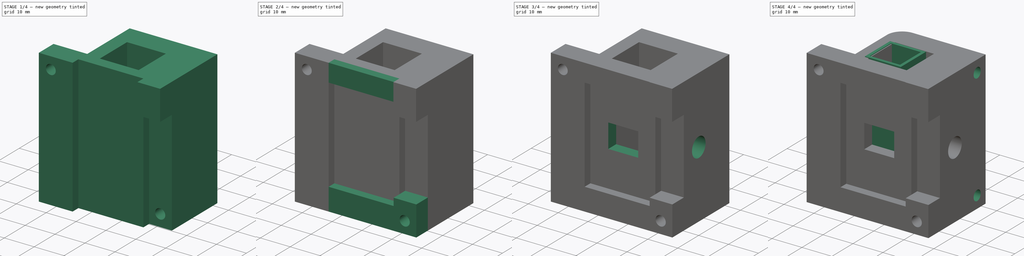
[diagram: build sequence overview — one tinted view per stage of 4, left to right]
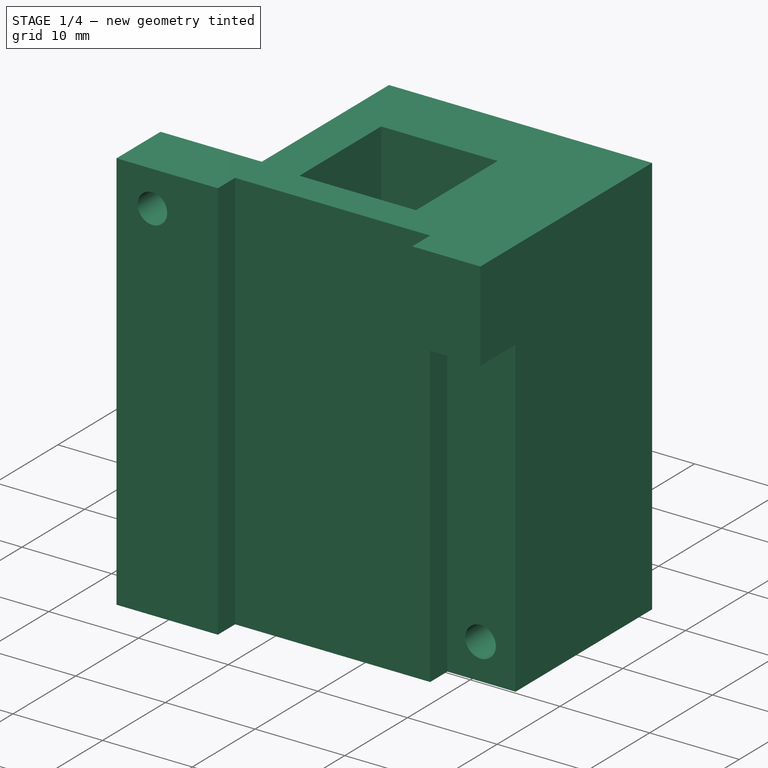
[diagram: stage 1 of 4 — iso view after this stage's code; geometry added in this stage tinted green]
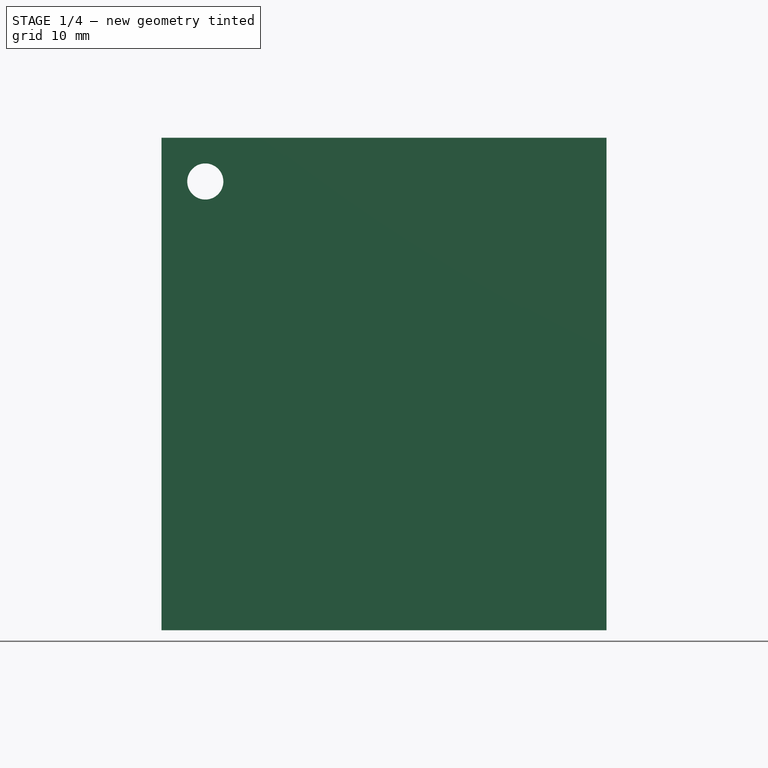
[diagram: stage 1 of 4 — front view after this stage's code; geometry added in this stage tinted green]
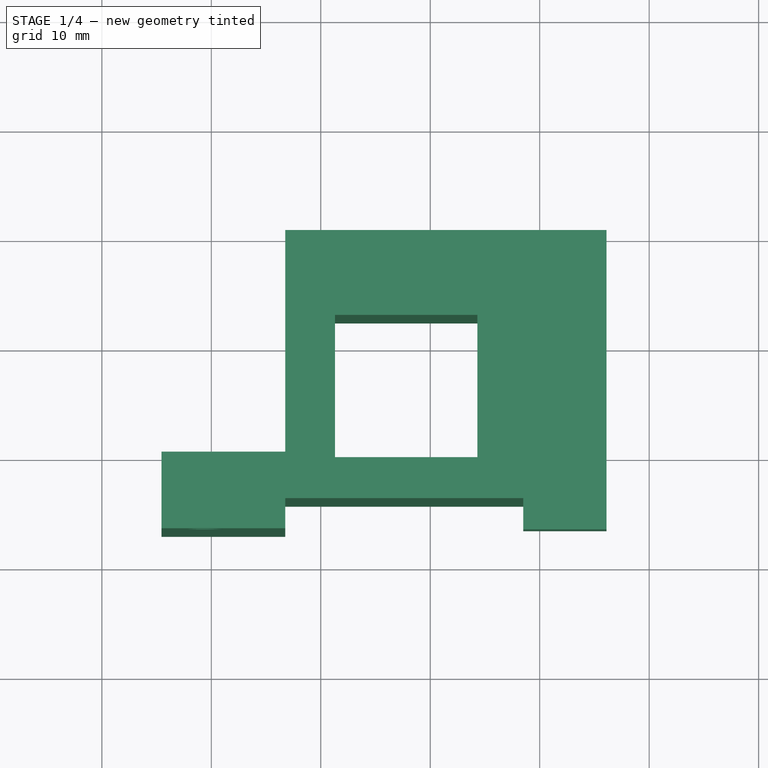
[diagram: stage 1 of 4 — top view after this stage's code; geometry added in this stage tinted green]
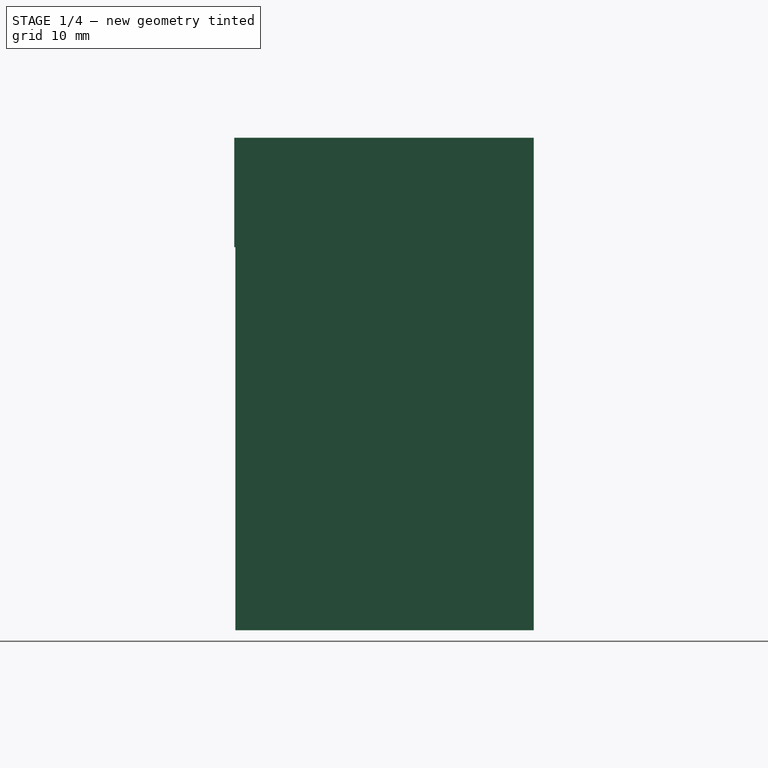
[diagram: stage 1 of 4 — right view after this stage's code; geometry added in this stage tinted green]
FCSTD DOCUMENT  (FreeCAD 0.21R33675 (Git))
Label: open_jip
License: All rights reserved
LicenseURL: http://en.wikipedia.org/wiki/All_rights_reserved
objects: Part::Feature×81, App::Part×56, Sketcher::SketchObject×12, PartDesign::ShapeBinder×10, PartDesign::Pad×7, PartDesign::Pocket×5, PartDesign::Body×2, PartDesign::Fillet×2
note: 133 computed .brp shape members not serialized (recipe doc carries the construction recipe); baked Part::Feature solids carry a one-line shape summary decoded from their .brp

FEATURE [PartDesign::Body] Body
  Group = -> [Sketch,Pad,ShapeBinder,Sketch001,Pad001]
  Origin = -> Origin001
  Tip = -> Pad001
FEATURE [App::Part] Part  label="Cuvette"
  Group = -> [Body]
  Origin = -> Origin
  Placement = pos=(1.8,0,0) rot=(0,0,1;0rad)
FEATURE [Part::Feature] Part__Feature051  label="SOLID012"
  shape: bbox 2 x 1.25 x 1.25 mm, 28 faces (baked)
FEATURE [App::Part] C_0805_2012Metric004
  Group = -> [Part__Feature051]
  Origin = -> Origin036
  Placement = pos=(13.779,16.905,1.65) rot=(0,0,1;0rad)
FEATURE [Part::Feature] Part__Feature052  label="SOLID013"
  shape: bbox 2 x 1.25 x 1.25 mm, 28 faces (baked)
FEATURE [App::Part] C_0805_2012Metric005
  Group = -> [Part__Feature052]
  Origin = -> Origin037
  Placement = pos=(18.979,21.505,1.65) rot=(0,0,-1;1.5708rad)
FEATURE [Part::Feature] Part__Feature053  label="SOLID014"
  shape: bbox 2 x 1.25 x 1.25 mm, 28 faces (baked)
FEATURE [App::Part] C_0805_2012Metric006
  Group = -> [Part__Feature053]
  Origin = -> Origin038
  Placement = pos=(20.179,10.305,1.65) rot=(0,0,-1;1.5708rad)
FEATURE [Part::Feature] Part__Feature054  label="SOLID015"
  shape: bbox 3.4 x 6.35 x 6.3 mm, 214 faces (baked)
FEATURE [App::Part] PinHeader_2x05_P1_27mm_Vertical  label="PinHeader_2x05_P1.27mm_Vertical"
  Group = -> [Part__Feature054]
  Origin = -> Origin039
  Placement = pos=(24.13,19.985,1.65) rot=(0,0,1;0rad)
FEATURE [Part::Feature] Part__Feature055  label="SOLID016"
  shape: bbox 2 x 1.25 x 1.25 mm, 28 faces (baked)
FEATURE [App::Part] C_0805_2012Metric007
  Group = -> [Part__Feature055]
  Origin = -> Origin040
  Placement = pos=(16.979,16.655,1.65) rot=(0,0,1;1.5708rad)
FEATURE [Part::Feature] Part__Feature056  label="SOLID017"
  shape: bbox 2 x 1.25 x 1.25 mm, 28 faces (baked)
FEATURE [App::Part] C_0805_2012Metric008
  Group = -> [Part__Feature056]
  Origin = -> Origin041
  Placement = pos=(19.179,16.655,1.65) rot=(0,0,1;1.5708rad)
FEATURE [Part::Feature] Part__Feature057  label="SOLID018"
  shape: bbox 2 x 1.2 x 0.45 mm, 26 faces (baked)
FEATURE [App::Part] R_0805_2012Metric003
  Group = -> [Part__Feature057]
  Origin = -> Origin042
  Placement = pos=(10.0665,16.905,1.65) rot=(0,0,1;3.14159rad)
FEATURE [Part::Feature] Part__Feature058  label="SOLID019"
  shape: bbox 2.54 x 10.16 x 10.1 mm, 134 faces (baked)
FEATURE [App::Part] PinSocket_1x04_P2_54mm_Vertical  label="PinSocket_1x04_P2.54mm_Vertical"
  Group = -> [Part__Feature058]
  Origin = -> Origin043
  Placement = pos=(10.795,2.54,1.65) rot=(0,0,1;1.5708rad)
FEATURE [Part::Feature] Part__Feature059  label="SOLID020"
  shape: bbox 2 x 1.25 x 1.25 mm, 28 faces (baked)
FEATURE [App::Part] C_0805_2012Metric009
  Group = -> [Part__Feature059]
  Origin = -> Origin044
  Placement = pos=(8.979,11.055,1.65) rot=(0,0,-1;1.5708rad)
FEATURE [Part::Feature] Part__Feature060  label="SOLID021"
  shape: bbox 2 x 1.25 x 1.25 mm, 28 faces (baked)
FEATURE [App::Part] C_0805_2012Metric010
  Group = -> [Part__Feature060]
  Origin = -> Origin045
  Placement = pos=(13.779,14.705,1.65) rot=(0,0,1;0rad)
FEATURE [Part::Feature] Part__Feature061  label="SOLID022"
  shape: bbox 2 x 1.25 x 1.25 mm, 28 faces (baked)
FEATURE [App::Part] C_0805_2012Metric011
  Group = -> [Part__Feature061]
  Origin = -> Origin046
  Placement = pos=(9.579,27.0425,1.65) rot=(0,0,1;1.5708rad)
FEATURE [Part::Feature] Part__Feature062  label="SOLID023"
  shape: bbox 2 x 1.2 x 0.45 mm, 26 faces (baked)
FEATURE [App::Part] R_0805_2012Metric004
  Group = -> [Part__Feature062]
  Origin = -> Origin047
  Placement = pos=(7.179,32.004,1.65) rot=(0,0,1;3.14159rad)
FEATURE [Part::Feature] Part__Feature063  label="COMPOUND045"
  shape: bbox 3.19 x 0.05 x 1.49 mm, 18 faces (baked)
FEATURE [Part::Feature] Part__Feature064  label="COMPOUND046"
  shape: bbox 0.6557 x 0.3 x 1.411 mm, 13 faces (baked)
FEATURE [Part::Feature] Part__Feature065  label="COMPOUND047"
  shape: bbox 0.6557 x 0.3 x 1.411 mm, 12 faces (baked)
FEATURE [Part::Feature] Part__Feature066  label="COMPOUND048"
  shape: bbox 3.025 x 0.12 x 1.325 mm, 18 faces (baked)
FEATURE [Part::Feature] Part__Feature067  label="COMPOUND049"
  shape: bbox 3.2 x 0.78 x 1.5 mm, 49 faces (baked)
FEATURE [App::Part] COMPOUND007  label="COMPOUND050"
  Group = -> [Part__Feature063,Part__Feature064,Part__Feature065,Part__Feature066,Part__Feature067]
  Origin = -> Origin048
FEATURE [App::Part] ECS__327_12_5_34R_C_TR  label="ECS-.327-12.5-34R-C-TR"
  Group = -> [COMPOUND007]
  Origin = -> Origin049
  Placement = pos=(17.979,13.505,1.65) rot=(0,0.707107,0.707107;3.14159rad)
FEATURE [Part::Feature] Part__Feature068  label="SOLID024"
  shape: bbox 2 x 1.25 x 1.25 mm, 28 faces (baked)
FEATURE [App::Part] C_0805_2012Metric012
  Group = -> [Part__Feature068]
  Origin = -> Origin050
  Placement = pos=(9.729,6.477,1.65) rot=(0,0,1;3.14159rad)
FEATURE [Part::Feature] Part__Feature069  label="SOLID025"
  shape: bbox 2 x 1.2 x 0.45 mm, 26 faces (baked)
FEATURE [App::Part] R_0805_2012Metric005
  Group = -> [Part__Feature069]
  Origin = -> Origin051
  Placement = pos=(12.319,27.813,1.65) rot=(0,0,1;0rad)
FEATURE [Part::Feature] Part__Feature070  label="SOLID026"
  shape: bbox 2 x 1.2 x 0.45 mm, 26 faces (baked)
FEATURE [App::Part] R_0805_2012Metric006
  Group = -> [Part__Feature070]
  Origin = -> Origin052
  Placement = pos=(16.779,21.505,1.65) rot=(0,0,-1;1.5708rad)
FEATURE [Part::Feature] Part__Feature071  label="SOLID027"
  shape: bbox 2 x 1.2 x 0.45 mm, 26 faces (baked)
FEATURE [App::Part] R_0805_2012Metric007
  Group = -> [Part__Feature071]
  Origin = -> Origin053
  Placement = pos=(21.336,14.0175,1.65) rot=(0,0,-1;1.5708rad)
FEATURE [Part::Feature] Part__Feature072  label="SOLID028"
  shape: bbox 5 x 5 x 0.77 mm, 206 faces (baked)
FEATURE [App::Part] QFN_32_1EP_5x5mm_P0_5mm_EP3_45x3_45mm  label="QFN-32-1EP_5x5mm_P0.5mm_EP3.45x3.45mm"
  Group = -> [Part__Feature072]
  Origin = -> Origin054
  Placement = pos=(14.829,8.655,1.65) rot=(0,0,-1;1.5708rad)
FEATURE [Part::Feature] Part__Feature073  label="COMPOUND051"
  shape: bbox 5.139 x 7.085 x 6.323 mm, 35 faces (baked)
FEATURE [Part::Feature] Part__Feature074  label="COMPOUND052"
  shape: bbox 10 x 5.225 x 6 mm, 179 faces (baked)
FEATURE [App::Part] COMPOUND008  label="COMPOUND053"
  Group = -> [Part__Feature073,Part__Feature074]
  Origin = -> Origin055
FEATURE [App::Part] TL3301PF160QG
  Group = -> [COMPOUND008]
  Origin = -> Origin056
  Placement = pos=(4.579,6.905,1.65) rot=(0.57735,-0.57735,-0.57735;2.0944rad)
FEATURE [Part::Feature] Part__Feature075  label="SOLID029"
  shape: bbox 2 x 1.2 x 0.45 mm, 26 faces (baked)
FEATURE [App::Part] R_0805_2012Metric008
  Group = -> [Part__Feature075]
  Origin = -> Origin057
  Placement = pos=(10.0915,14.705,1.65) rot=(0,0,1;0rad)
FEATURE [Part::Feature] Part__Feature076  label="SOLID030"
  shape: bbox 2 x 1.25 x 1.25 mm, 28 faces (baked)
FEATURE [App::Part] C_0805_2012Metric013
  Group = -> [Part__Feature076]
  Origin = -> Origin058
  Placement = pos=(22.379,10.305,1.65) rot=(0,0,-1;1.5708rad)
FEATURE [Part::Feature] Part__Feature077  label="SOLID031"
  shape: bbox 2 x 1.2 x 0.45 mm, 26 faces (baked)
FEATURE [App::Part] R_0805_2012Metric009
  Group = -> [Part__Feature077]
  Origin = -> Origin059
  Placement = pos=(24.257,23.368,1.65) rot=(0,0,-1;1.5708rad)
FEATURE [Part::Feature] Part__Feature078  label="SOLID032"
  shape: bbox 2.8 x 2.9 x 1.55 mm, 124 faces (baked)
FEATURE [App::Part] SOT_23_6  label="SOT-23-6"
  Group = -> [Part__Feature078]
  Origin = -> Origin060
  Placement = pos=(10.379,22.705,1.65) rot=(0,0,1;1.5708rad)
FEATURE [Part::Feature] Part__Feature079  label="SOLID033"
  shape: bbox 5.4 x 5.8 x 14.1 mm, 16 faces (baked)
FEATURE [App::Part] LED_D5_0mm_IRGrey  label="LED_D5.0mm_IRGrey"
  Group = -> [Part__Feature079]
  Origin = -> Origin061
  Placement = pos=(14.478,21.331,2.9) rot=(0.707107,0.707107,0;3.14159rad)
FEATURE [Part::Feature] Part__Feature080  label="detect PCB"
  shape: bbox 29.05 x 45.05 x 1.6 mm, 37 faces (baked)
FEATURE [App::Part] detect_1  label="detect 1"
  Group = -> [C_0805_2012Metric004,C_0805_2012Metric005,C_0805_2012Metric006,PinHeader_2x05_P1_27mm_Vertical,C_0805_2012Metric007,C_0805_2012Metric008,R_0805_2012Metric003,PinSocket_1x04_P2_54mm_Vertical,C_0805_2012Metric009,C_0805_2012Metric010,C_0805_2012Metric011,R_0805_2012Metric004,ECS__327_12_5_34R_C_TR,C_0805_2012Metric012,R_0805_2012Metric005,R_0805_2012Metric006,R_0805_2012Metric007,+8 more]
  Origin = -> Origin062
  Placement = pos=(26.3,-8.8,2e-15) rot=(0.57735,0.57735,0.57735;2.0944rad)
FEATURE [Part::Feature] Part__Feature  label="COMPOUND"
  shape: bbox 0.49 x 12.05 x 4.1 mm, 20 faces (baked)
FEATURE [Part::Feature] Part__Feature081  label="COMPOUND054"
  shape: bbox 6.825 x 10.56 x 9 mm, 25 faces (baked)
FEATURE [Part::Feature] Part__Feature082  label="COMPOUND055"
  shape: bbox 9.1 x 2.4 x 2.4 mm, 7 faces (baked)
FEATURE [Part::Feature] Part__Feature083  label="COMPOUND056"
  shape: bbox 2.5 x 8 x 0.65 mm, 12 faces (baked)
FEATURE [Part::Feature] Part__Feature084  label="COMPOUND057"
  shape: bbox 0.25 x 3.5 x 2.5 mm, 8 faces (baked)
FEATURE [Part::Feature] Part__Feature085  label="COMPOUND058"
  shape: bbox 12.15 x 11 x 9 mm, 31 faces (baked)
FEATURE [Part::Feature] Part__Feature086  label="COMPOUND059"
  shape: bbox 8.6 x 0.45 x 3.3 mm, 5 faces (baked)
FEATURE [App::Part] COMPOUND  label="COMPOUND060"
  Group = -> [Part__Feature,Part__Feature081,Part__Feature082,Part__Feature083,Part__Feature084,Part__Feature085,Part__Feature086]
  Origin = -> Origin063
FEATURE [App::Part] PJ_002A  label="PJ-002A"
  Group = -> [COMPOUND]
  Origin = -> Origin064
  Placement = pos=(11.938,7.239,1.65) rot=(0,0.707107,0.707107;3.14159rad)
FEATURE [Part::Feature] Part__Feature087  label="COMPOUND061"
  shape: bbox 1.882 x 4.652 x 0.051 mm, 6 faces (baked)
FEATURE [Part::Feature] Part__Feature088  label="COMPOUND062"
  shape: bbox 9.412 x 5.032 x 3.812 mm, 16 faces (baked)
FEATURE [Part::Feature] Part__Feature089  label="COMPOUND063"
  shape: bbox 4.242 x 3.81 x 1.905 mm, 10 faces (baked)
FEATURE [Part::Feature] Part__Feature090  label="COMPOUND064"
  shape: bbox 4.242 x 3.81 x 1.905 mm, 10 faces (baked)
FEATURE [App::Part] COMPOUND009
  Group = -> [Part__Feature087,Part__Feature088,Part__Feature089,Part__Feature090]
  Origin = -> Origin065
FEATURE [App::Part] _154010_DRL  label="0154010.DRL"
  Group = -> [COMPOUND009]
  Origin = -> Origin066
  Placement = pos=(26.543,9.2657,1.65) rot=(0,0,-1;1.5708rad)
FEATURE [Part::Feature] Part__Feature091  label="SOLID"
  shape: bbox 7.3 x 4.3 x 1.5 mm, 40 faces (baked)
FEATURE [App::Part] CP_EIA_7343_15_Kemet_W  label="CP_EIA-7343-15_Kemet-W"
  Group = -> [Part__Feature091]
  Origin = -> Origin067
  Placement = pos=(26.289,17.653,1.65) rot=(0,0,1;0rad)
FEATURE [Part::Feature] Part__Feature092  label="SOLID034"
  shape: bbox 7.2 x 12.7 x 8.41 mm, 103 faces (baked)
FEATURE [App::Part] TBP02R2_381_02BE  label="TBP02R2-381-02BE"
  Group = -> [Part__Feature092]
  Origin = -> Origin068
  Placement = pos=(12.352,34.632,19.65) rot=(0,-0.707107,0.707107;3.14159rad)
FEATURE [Part::Feature] Part__Feature093  label="SOLID035"
  shape: bbox 2 x 1.2 x 0.45 mm, 26 faces (baked)
FEATURE [App::Part] R_0805_2012Metric
  Group = -> [Part__Feature093]
  Origin = -> Origin069
  Placement = pos=(37.592,12.065,1.65) rot=(0,0,-1;1.5708rad)
FEATURE [Part::Feature] Part__Feature094  label="SOLID036"
  shape: bbox 2 x 1.2 x 0.45 mm, 26 faces (baked)
FEATURE [App::Part] R_0805_2012Metric010
  Group = -> [Part__Feature094]
  Origin = -> Origin070
  Placement = pos=(15.24,12.192,1.65) rot=(0,0,1;0rad)
FEATURE [Part::Feature] Part__Feature095  label="SOLID037"
  shape: bbox 2 x 1.25 x 1.25 mm, 28 faces (baked)
FEATURE [App::Part] C_0805_2012Metric
  Group = -> [Part__Feature095]
  Origin = -> Origin071
  Placement = pos=(29.972,38.862,1.65) rot=(0,0,1;1.5708rad)
FEATURE [Part::Feature] Part__Feature096  label="SOLID038"
  shape: bbox 2 x 1.2 x 0.45 mm, 26 faces (baked)
FEATURE [App::Part] R_0805_2012Metric011
  Group = -> [Part__Feature096]
  Origin = -> Origin072
  Placement = pos=(35.433,12.0415,1.65) rot=(0,0,-1;1.5708rad)
FEATURE [Part::Feature] Part__Feature097  label="COMPOUND065"
  shape: bbox 1.75 x 0.76 x 0.7 mm, 14 faces (baked)
FEATURE [Part::Feature] Part__Feature098  label="COMPOUND066"
  shape: bbox 1.75 x 0.76 x 0.7 mm, 14 faces (baked)
FEATURE [Part::Feature] Part__Feature099  label="COMPOUND067"
  shape: bbox 3.5 x 1.5 x 6.5 mm, 14 faces (baked)
FEATURE [Part::Feature] Part__Feature100  label="COMPOUND068"
  shape: bbox 1.75 x 0.76 x 0.7 mm, 14 faces (baked)
FEATURE [Part::Feature] Part__Feature101  label="COMPOUND069"
  shape: bbox 1.75 x 0.76 x 3 mm, 14 faces (baked)
FEATURE [App::Part] COMPOUND010
  Group = -> [Part__Feature097,Part__Feature098,Part__Feature099,Part__Feature100,Part__Feature101]
  Origin = -> Origin073
FEATURE [App::Part] DMP6023LE_13  label="DMP6023LE-13"
  Group = -> [COMPOUND010]
  Origin = -> Origin074
  Placement = pos=(18.923,7.239,1.65) rot=(1,0,0;1.5708rad)
FEATURE [Part::Feature] Part__Feature102  label="SOLID039"
  shape: bbox 2 x 1.25 x 1.25 mm, 28 faces (baked)
FEATURE [App::Part] C_0805_2012Metric014
  Group = -> [Part__Feature102]
  Origin = -> Origin075
  Placement = pos=(33.462,33.782,1.65) rot=(0,0,1;3.14159rad)
FEATURE [Part::Feature] Part__Feature103  label="COMPOUND070"
  shape: bbox 0.08509 x 0.08509 x 0.002 mm, 3 faces (baked)
FEATURE [Part::Feature] Part__Feature104  label="COMPOUND071"
  shape: bbox 1.702 x 2.998 x 0.991 mm, 6 faces (baked)
FEATURE [Part::Feature] Part__Feature105  label="COMPOUND072"
  shape: bbox 0.5476 x 0.4596 x 0.3196 mm, 14 faces (baked)
FEATURE [Part::Feature] Part__Feature106  label="COMPOUND073"
  shape: bbox 0.5476 x 0.4596 x 0.3196 mm, 14 faces (baked)
FEATURE [Part::Feature] Part__Feature107  label="COMPOUND074"
  shape: bbox 0.5476 x 0.4596 x 0.3196 mm, 14 faces (baked)
FEATURE [Part::Feature] Part__Feature108  label="COMPOUND075"
  shape: bbox 0.5476 x 0.4596 x 0.3196 mm, 14 faces (baked)
FEATURE [Part::Feature] Part__Feature109  label="COMPOUND076"
  shape: bbox 0.5476 x 0.4596 x 0.3196 mm, 14 faces (baked)
FEATURE [Part::Feature] Part__Feature110  label="COMPOUND077"
  shape: bbox 0.5476 x 0.4596 x 0.3196 mm, 14 faces (baked)
FEATURE [App::Part] COMPOUND011
  Group = -> [Part__Feature103,Part__Feature104,Part__Feature105,Part__Feature106,Part__Feature107,Part__Feature108,Part__Feature109,Part__Feature110]
  Origin = -> Origin076
FEATURE [App::Part] AP63205WU_7  label="AP63205WU-7"
  Group = -> [COMPOUND011]
  Origin = -> Origin077
  Placement = pos=(29.1782,34.925,1.65) rot=(0,0,1;0rad)
FEATURE [Part::Feature] Part__Feature111  label="COMPOUND078"
  shape: bbox 0.3048 x 0.3048 x 0.002 mm, 3 faces (baked)
FEATURE [Part::Feature] Part__Feature112  label="COMPOUND079"
  shape: bbox 6.096 x 5.512 x 4.795 mm, 6 faces (baked)
FEATURE [Part::Feature] Part__Feature113  label="COMPOUND080"
  shape: bbox 2.261 x 5.512 x 0.006 mm, 6 faces (baked)
FEATURE [Part::Feature] Part__Feature114  label="COMPOUND081"
  shape: bbox 2.261 x 5.512 x 0.006 mm, 6 faces (baked)
FEATURE [App::Part] COMPOUND012
  Group = -> [Part__Feature111,Part__Feature112,Part__Feature113,Part__Feature114]
  Origin = -> Origin078
FEATURE [App::Part] SDE0604A_3R9M  label="SDE0604A-3R9M"
  Group = -> [COMPOUND012]
  Origin = -> Origin079
  Placement = pos=(35.56,38.481,1.65) rot=(0,0,1;0rad)
FEATURE [Part::Feature] Part__Feature115  label="COMPOUND082"
  shape: bbox 7.696 x 1.27 x 10.36 mm, 16 faces (baked)
FEATURE [Part::Feature] Part__Feature116  label="COMPOUND083"
  shape: bbox 5.105 x 3.289 x 1.27 mm, 18 faces (baked)
FEATURE [Part::Feature] Part__Feature117  label="COMPOUND084"
  shape: bbox 5.105 x 3.289 x 1.27 mm, 18 faces (baked)
FEATURE [Part::Feature] Part__Feature118  label="COMPOUND085"
  shape: bbox 5.105 x 3.289 x 1.27 mm, 18 faces (baked)
FEATURE [Part::Feature] Part__Feature119  label="COMPOUND086"
  shape: bbox 8.776 x 4.597 x 10.36 mm, 20 faces (baked)
FEATURE [Part::Feature] Part__Feature120  label="COMPOUND087"
  shape: bbox 0.762 x 0.508 x 0.762 mm, 4 faces (baked)
FEATURE [App::Part] COMPOUND013
  Group = -> [Part__Feature115,Part__Feature116,Part__Feature117,Part__Feature118,Part__Feature119,Part__Feature120]
  Origin = -> Origin080
FEATURE [App::Part] MIC29150_12WU  label="MIC29150-12WU"
  Group = -> [COMPOUND013]
  Origin = -> Origin081
  Placement = pos=(18.428,24.384,1.65) rot=(0,0.707107,0.707107;3.14159rad)
FEATURE [Part::Feature] Part__Feature121  label="SOLID040"
  shape: bbox 7.3 x 4.3 x 1.5 mm, 40 faces (baked)
FEATURE [App::Part] CP_EIA_7343_15_Kemet_W001  label="CP_EIA-7343-15_Kemet-W001"
  Group = -> [Part__Feature121]
  Origin = -> Origin082
  Placement = pos=(21.844,32.766,1.65) rot=(0,0,1;3.14159rad)
FEATURE [Part::Feature] Part__Feature122  label="SOLID041"
  shape: bbox 2 x 1.25 x 1.25 mm, 28 faces (baked)
FEATURE [App::Part] C_0805_2012Metric015
  Group = -> [Part__Feature122]
  Origin = -> Origin083
  Placement = pos=(28.829,31.75,1.65) rot=(0,0,1;0rad)
FEATURE [Part::Feature] Part__Feature123  label="COMPOUND088"
  shape: bbox 0.5222 x 0.7239 x 0.6096 mm, 14 faces (baked)
FEATURE [Part::Feature] Part__Feature124  label="COMPOUND089"
  shape: bbox 2.692 x 1.245 x 1.6 mm, 15 faces (baked)
FEATURE [Part::Feature] Part__Feature125  label="COMPOUND090"
  shape: bbox 0.6096 x 0.0508 x 1.267 mm, 6 faces (baked)
FEATURE [Part::Feature] Part__Feature126  label="COMPOUND091"
  shape: bbox 0.5222 x 0.7239 x 0.6096 mm, 14 faces (baked)
FEATURE [App::Part] COMPOUND014
  Group = -> [Part__Feature123,Part__Feature124,Part__Feature125,Part__Feature126]
  Origin = -> Origin084
FEATURE [App::Part] MMSZ4700T1G
  Group = -> [COMPOUND014]
  Origin = -> Origin085
  Placement = pos=(19.953,12.065,1.65) rot=(0,0.707107,0.707107;3.14159rad)
FEATURE [Part::Feature] Part__Feature127  label="SOLID042"
  shape: bbox 2 x 1.25 x 1.25 mm, 28 faces (baked)
FEATURE [App::Part] C_0805_2012Metric016
  Group = -> [Part__Feature127]
  Origin = -> Origin086
  Placement = pos=(33.462,31.623,1.65) rot=(0,0,1;3.14159rad)
FEATURE [Part::Feature] Part__Feature128  label="SOLID043"
  shape: bbox 12.9 x 15.24 x 8.08 mm, 292 faces (baked)
FEATURE [App::Part] PinHeader_2x06_P2_54mm_Horizontal  label="PinHeader_2x06_P2.54mm_Horizontal"
  Group = -> [Part__Feature128]
  Origin = -> Origin087
  Placement = pos=(34.163,15.875,-0.05) rot=(1,0,0;3.14159rad)
FEATURE [Part::Feature] Part__Feature129  label="SOLID044"
  shape: bbox 28.98 x 20 x 2.75 mm, 92 faces (baked)
FEATURE [App::Part] _0W_LED  label="10W LED"
  Group = -> [Part__Feature129]
  Origin = -> Origin088
  Placement = pos=(22.368,23.495,-0.05) rot=(0.707107,0.707107,0;3.14159rad)
FEATURE [Part::Feature] Part__Feature130  label="excite PCB"
  shape: bbox 40.89 x 45.09 x 1.6 mm, 97 faces (baked)
FEATURE [App::Part] excite_1  label="excite 1"
  Group = -> [PJ_002A,_154010_DRL,CP_EIA_7343_15_Kemet_W,TBP02R2_381_02BE,R_0805_2012Metric,R_0805_2012Metric010,C_0805_2012Metric,R_0805_2012Metric011,DMP6023LE_13,C_0805_2012Metric014,AP63205WU_7,SDE0604A_3R9M,MIC29150_12WU,CP_EIA_7343_15_Kemet_W001,C_0805_2012Metric015,MMSZ4700T1G,C_0805_2012Metric016,PinHeader_2x06_P2_54mm_Horizontal,_0W_LED,Part__Feature130]
  Origin = -> Origin089
  Placement = pos=(-14.6,-7.2,1.1e-15) rot=(1,0,0;1.5708rad)
FEATURE [Sketcher::SketchObject] Sketch002
  FullyConstrained = true
  MapMode = 5
  Support = -> [XY_Plane091]
  sketch-geometry (14):
    g0: LineSegment StartX=-14.55 StartY=-7 StartZ=0 EndX=-3.25 EndY=-7 EndZ=0
    g1: LineSegment StartX=-3.25 StartY=-7 StartZ=0 EndX=-3.25 EndY=-4.25 EndZ=0
    g2: LineSegment StartX=-3.25 StartY=-4.25 StartZ=0 EndX=18.5 EndY=-4.25 EndZ=0
    g3: LineSegment StartX=18.5 StartY=-4.25 StartZ=0 EndX=18.5 EndY=-1.5 EndZ=0
    g4: LineSegment StartX=18.5 StartY=-1.5 StartZ=0 EndX=26.1 EndY=-1.5 EndZ=0
    g5: LineSegment StartX=26.1 StartY=-1.5 StartZ=0 EndX=26.1 EndY=20.25 EndZ=0
    g6: LineSegment StartX=1.3 StartY=12.5 StartZ=0 EndX=14.3 EndY=12.5 EndZ=0
    g7: LineSegment StartX=14.3 StartY=12.5 StartZ=0 EndX=14.3 EndY=-0.5 EndZ=0
    g8: LineSegment StartX=14.3 StartY=-0.5 StartZ=0 EndX=1.3 EndY=-0.5 EndZ=0
    g9: LineSegment StartX=1.3 StartY=-0.5 StartZ=0 EndX=1.3 EndY=12.5 EndZ=0
    g10: LineSegment StartX=-14.55 StartY=-7 StartZ=0 EndX=-14.55 EndY=0 EndZ=0
    g11: LineSegment StartX=-14.55 StartY=0 StartZ=0 EndX=-3.25 EndY=0 EndZ=0
    g12: LineSegment StartX=-3.25 StartY=0 StartZ=0 EndX=-3.25 EndY=20.25 EndZ=0
    g13: LineSegment StartX=-3.25 StartY=20.25 StartZ=0 EndX=26.1 EndY=20.25 EndZ=0
  constraints (42):
    c: Horizontal(g0)
    c: Coincident(g0,g1)
    c: Vertical(g1)
    c: Coincident(g1,g2)
    c: Horizontal(g2)
    c: Coincident(g2,g3)
    c: Vertical(g3)
    c: Coincident(g3,g4)
    c: Horizontal(g4)
    c: Coincident(g4,g5)
    c: Vertical(g5)
    c: Coincident(g6,g7)
    c: Coincident(g7,g8)
    c: Coincident(g8,g9)
    c: Coincident(g9,g6)
    c: Horizontal(g6)
    c: Horizontal(g8)
    c: Vertical(g7)
    c: Vertical(g9)
    c: Distance(g6) = 13
    c: Coincident(g0,g10)
    c: PointOnObject(g10,g-1)
    c: Vertical(g10)
    c: Coincident(g10,g11)
    c: Horizontal(g11)
    c: Coincident(g11,g12)
    c: Vertical(g12)
    c: Coincident(g13,g12)
    c: Coincident(g13,g5)
    c: Horizontal(g13)
    c: Distance(g7) = 13
    c: Distance(g12) = 20.25
    c: Distance(g1,g-2) = 3.25
    c: Distance(g11,g-2) = 3.25
    c: Distance(g11) = 11.3
    c: Distance(g1) = 2.75
    c: Distance(g0,g-1) = 7
    c: Distance(g3,g-1) = 1.5
    c: Distance(g4) = 7.6
    c: Distance(g2,g-2) = 18.5
    c: Distance(g8,g-1) = 0.5
    c: Distance(g-1,g9) = 1.3
FEATURE [PartDesign::Pad] Pad002
  Direction = (0,0,1)
  Length = 45
  Length2 = 10
  Profile = -> Sketch002
  ReferenceAxis = -> Sketch002 [N_Axis]
  Type = 0
FEATURE [PartDesign::ShapeBinder] ShapeBinder001
  Support = -> [Pad002]
  TraceSupport = false
FEATURE [Sketcher::SketchObject] Sketch003
  ExternalGeometry = -> [Pad002]
  FullyConstrained = true
  MapMode = 5
  Placement = pos=(0,-7,0) rot=(1,0,0;1.5708rad)
  Support = -> [ShapeBinder001]
  sketch-geometry (1):
    g0: Circle CenterX=-10.55 CenterY=41 CenterZ=0 NormalX=0 NormalY=0 NormalZ=1 AngleXU=0 Radius=1.65
  constraints (3):
    c: Distance(g0,g-3) = 4
    c: Distance(g0,g-4) = 4
    c: Diameter(g0) = 3.3
FEATURE [PartDesign::Pocket] Pocket
  BaseFeature = -> Pad002
  Direction = (0,1,-2e-16)
  Length = 20
  Length2 = 5
  Profile = -> Sketch003
  ReferenceAxis = -> Sketch003 [N_Axis]
  Type = 0
FEATURE [PartDesign::ShapeBinder] ShapeBinder002
  Support = -> [Pocket]
  TraceSupport = false
FEATURE [Sketcher::SketchObject] Sketch004
  ExternalGeometry = -> [Pocket]
  FullyConstrained = true
  MapMode = 5
  Placement = pos=(0,-1.5,0) rot=(1,0,0;1.5708rad)
  Support = -> [ShapeBinder002]
  sketch-geometry (1):
    g0: Circle CenterX=22.2 CenterY=4 CenterZ=0 NormalX=0 NormalY=0 NormalZ=1 AngleXU=0 Radius=1.7
  constraints (3):
    c: Diameter(g0) = 3.4
    c: Distance(g0,g-4) = 4
    c: Distance(g0,g-3) = 3.9
FEATURE [PartDesign::Pocket] Pocket001
  BaseFeature = -> Pocket
  Direction = (0,1,-2e-16)
  Length = 15
  Length2 = 5
  Profile = -> Sketch004
  ReferenceAxis = -> Sketch004 [N_Axis]
  Type = 0
FEATURE [PartDesign::ShapeBinder] ShapeBinder003
  Support = -> [Pocket001]
  TraceSupport = false
FEATURE [Sketcher::SketchObject] Sketch005
  ExternalGeometry = -> [Pocket001]
  FullyConstrained = true
  MapMode = 5
  Placement = pos=(0,-1.5,0) rot=(1,0,0;1.5708rad)
  Support = -> [ShapeBinder003]
  sketch-geometry (4):
    g0: LineSegment StartX=26.1 StartY=45 StartZ=0 EndX=18.5 EndY=45 EndZ=0
    g1: LineSegment StartX=18.5 StartY=45 StartZ=0 EndX=18.5 EndY=35 EndZ=0
    g2: LineSegment StartX=18.5 StartY=35 StartZ=0 EndX=26.1 EndY=35 EndZ=0
    g3: LineSegment StartX=26.1 StartY=35 StartZ=0 EndX=26.1 EndY=45 EndZ=0
  constraints (11):
    c: Coincident(g0,g1)
    c: Coincident(g1,g2)
    c: Coincident(g2,g3)
    c: Coincident(g3,g0)
    c: Horizontal(g0)
    c: Horizontal(g2)
    c: Vertical(g1)
    c: Vertical(g3)
    c: Coincident(g0,g-4)
    c: PointOnObject(g1,g-5)
    c: Distance(g1,g0) = 10
FEATURE [PartDesign::Pad] Pad003
  BaseFeature = -> Pocket001
  Direction = (0,-1,2e-16)
  Length = 5.6
  Length2 = 10
  Profile = -> Sketch005
  ReferenceAxis = -> Sketch005 [N_Axis]
  Type = 0
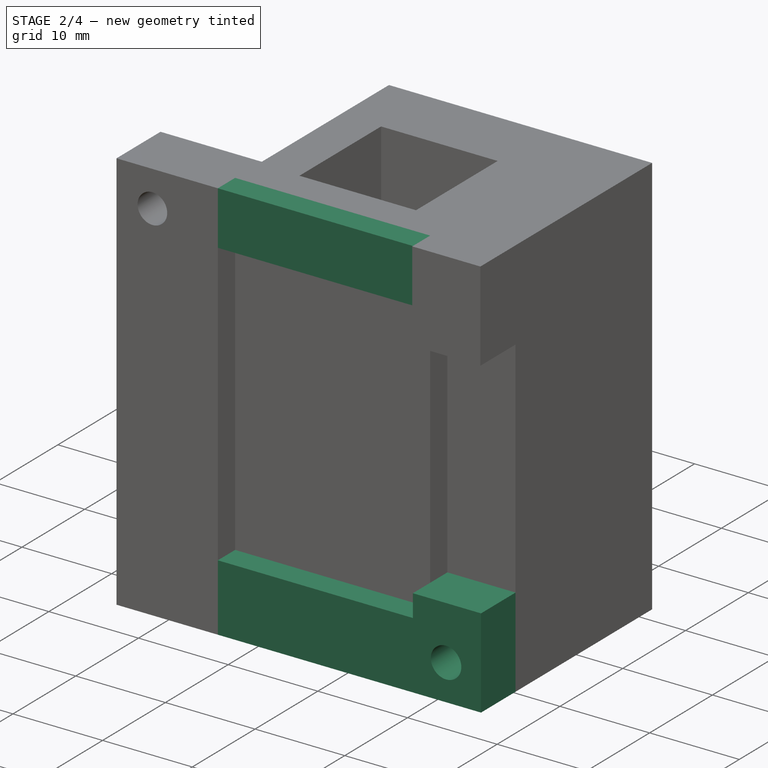
[diagram: stage 2 of 4 — iso view after this stage's code; geometry added in this stage tinted green]
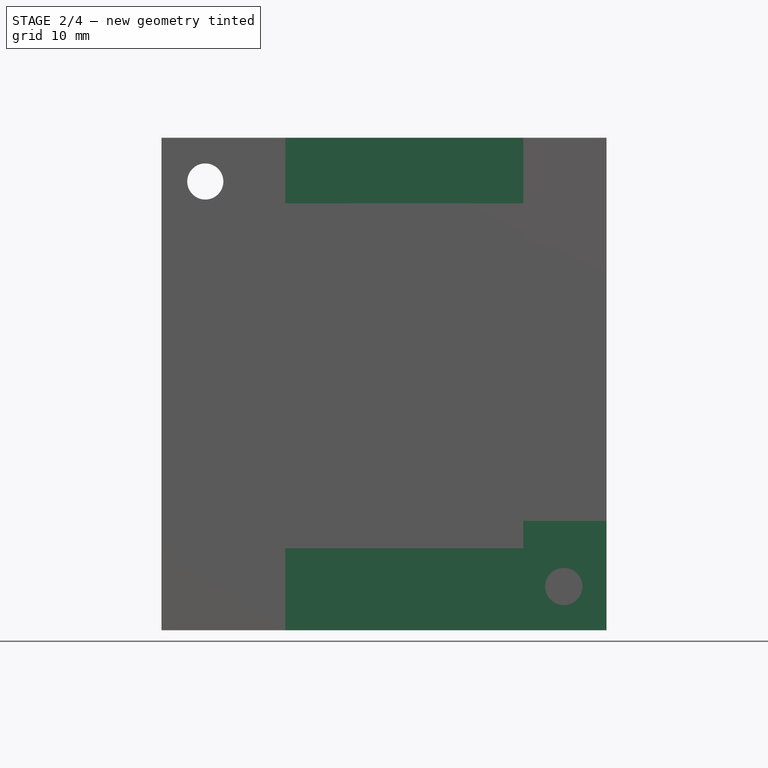
[diagram: stage 2 of 4 — front view after this stage's code; geometry added in this stage tinted green]
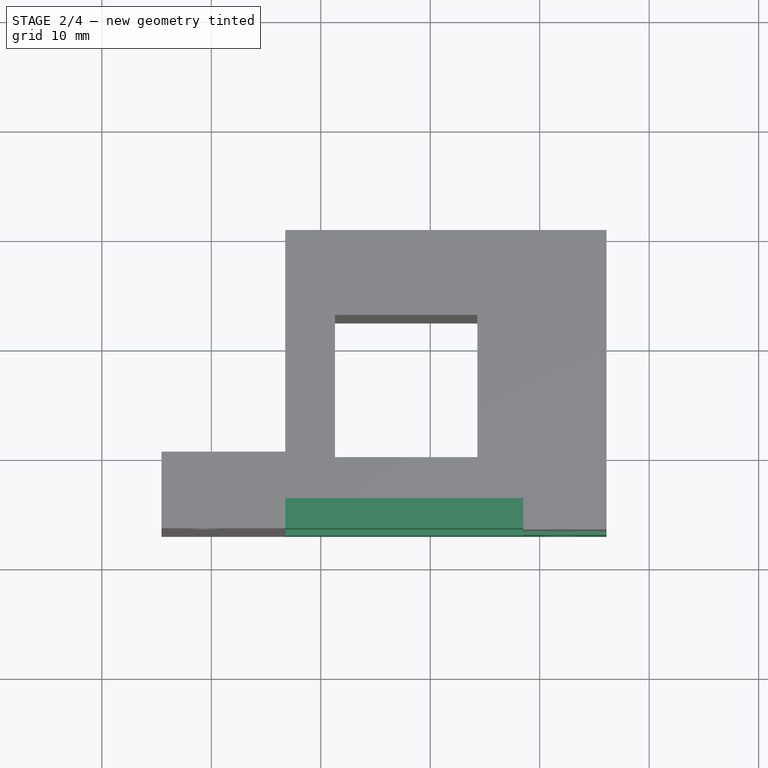
[diagram: stage 2 of 4 — top view after this stage's code; geometry added in this stage tinted green]
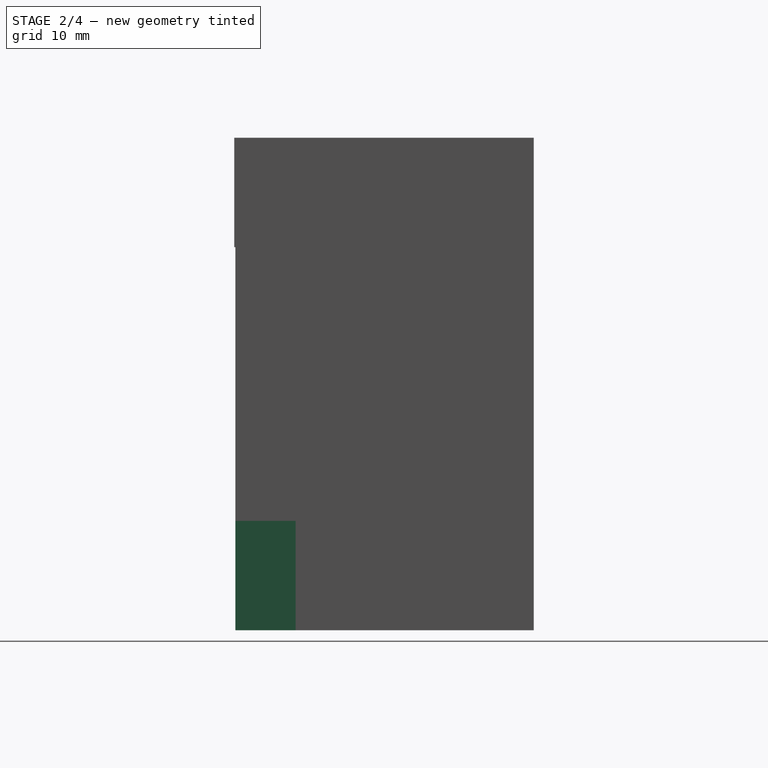
[diagram: stage 2 of 4 — right view after this stage's code; geometry added in this stage tinted green]
FEATURE [PartDesign::ShapeBinder] ShapeBinder004
  Support = -> [Pad003]
  TraceSupport = false
FEATURE [Sketcher::SketchObject] Sketch006
  ExternalGeometry = -> [Pad003]
  FullyConstrained = true
  MapMode = 5
  Placement = pos=(0,-4.25,0) rot=(1,0,0;1.5708rad)
  Support = -> [ShapeBinder004]
  sketch-geometry (4):
    g0: LineSegment StartX=-3.25 StartY=45 StartZ=0 EndX=18.5 EndY=45 EndZ=0
    g1: LineSegment StartX=18.5 StartY=45 StartZ=0 EndX=18.5 EndY=39 EndZ=0
    g2: LineSegment StartX=18.5 StartY=39 StartZ=0 EndX=-3.25 EndY=39 EndZ=0
    g3: LineSegment StartX=-3.25 StartY=39 StartZ=0 EndX=-3.25 EndY=45 EndZ=0
  constraints (11):
    c: Coincident(g0,g1)
    c: Coincident(g1,g2)
    c: Coincident(g2,g3)
    c: Coincident(g3,g0)
    c: Horizontal(g0)
    c: Horizontal(g2)
    c: Vertical(g1)
    c: Vertical(g3)
    c: Coincident(g0,g-4)
    c: PointOnObject(g1,g-5)
    c: Distance(g1,g0) = 6
FEATURE [PartDesign::Pad] Pad004
  BaseFeature = -> Pad003
  Direction = (0,-1,2e-16)
  Length = 2.75
  Length2 = 10
  Profile = -> Sketch006
  ReferenceAxis = -> Sketch006 [N_Axis]
  Type = 0
FEATURE [PartDesign::ShapeBinder] ShapeBinder005
  Support = -> [Pad004]
  TraceSupport = false
FEATURE [Sketcher::SketchObject] Sketch007
  ExternalGeometry = -> [Pad004]
  FullyConstrained = true
  MapMode = 5
  Placement = pos=(0,-1.5,0) rot=(1,0,0;1.5708rad)
  Support = -> [ShapeBinder005]
  sketch-geometry (5):
    g0: LineSegment StartX=26.1 StartY=0 StartZ=0 EndX=18.5 EndY=0 EndZ=0
    g1: LineSegment StartX=18.5 StartY=0 StartZ=0 EndX=18.5 EndY=10 EndZ=0
    g2: LineSegment StartX=18.5 StartY=10 StartZ=0 EndX=26.1 EndY=10 EndZ=0
    g3: LineSegment StartX=26.1 StartY=10 StartZ=0 EndX=26.1 EndY=0 EndZ=0
    g4: Circle CenterX=22.2 CenterY=4 CenterZ=0 NormalX=0 NormalY=0 NormalZ=1 AngleXU=0 Radius=1.7
  constraints (14):
    c: Coincident(g0,g1)
    c: Coincident(g1,g2)
    c: Coincident(g2,g3)
    c: Coincident(g3,g0)
    c: Horizontal(g0)
    c: Horizontal(g2)
    c: Vertical(g1)
    c: Vertical(g3)
    c: Coincident(g0,g-4)
    c: Distance(g3) = 10
    c: PointOnObject(g1,g-3)
    c: Distance(g4,g2) = 6
    c: Distance(g4,g3) = 3.9
    c: Diameter(g4) = 3.4
FEATURE [PartDesign::Pad] Pad005
  BaseFeature = -> Pad004
  Direction = (0,-1,2e-16)
  Length = 5.5
  Length2 = 10
  Profile = -> Sketch007
  ReferenceAxis = -> Sketch007 [N_Axis]
  Type = 0
FEATURE [PartDesign::ShapeBinder] ShapeBinder006
  Support = -> [Pad005]
  TraceSupport = false
FEATURE [Sketcher::SketchObject] Sketch008
  ExternalGeometry = -> [Pad005]
  FullyConstrained = true
  MapMode = 5
  Placement = pos=(0,-4.25,0) rot=(1,0,0;1.5708rad)
  Support = -> [ShapeBinder006]
  sketch-geometry (4):
    g0: LineSegment StartX=18.5 StartY=0 StartZ=0 EndX=-3.25 EndY=0 EndZ=0
    g1: LineSegment StartX=-3.25 StartY=0 StartZ=0 EndX=-3.25 EndY=7.5 EndZ=0
    g2: LineSegment StartX=-3.25 StartY=7.5 StartZ=0 EndX=18.5 EndY=7.5 EndZ=0
    g3: LineSegment StartX=18.5 StartY=7.5 StartZ=0 EndX=18.5 EndY=0 EndZ=0
  constraints (11):
    c: Coincident(g0,g1)
    c: Coincident(g1,g2)
    c: Coincident(g2,g3)
    c: Coincident(g3,g0)
    c: Horizontal(g0)
    c: Horizontal(g2)
    c: Vertical(g1)
    c: Vertical(g3)
    c: Coincident(g0,g-4)
    c: PointOnObject(g1,g-3)
    c: Distance(g0,g2) = 7.5
FEATURE [PartDesign::Pad] Pad006
  BaseFeature = -> Pad005
  Direction = (0,-1,2e-16)
  Length = 2.75
  Length2 = 10
  Profile = -> Sketch008
  ReferenceAxis = -> Sketch008 [N_Axis]
  Type = 0
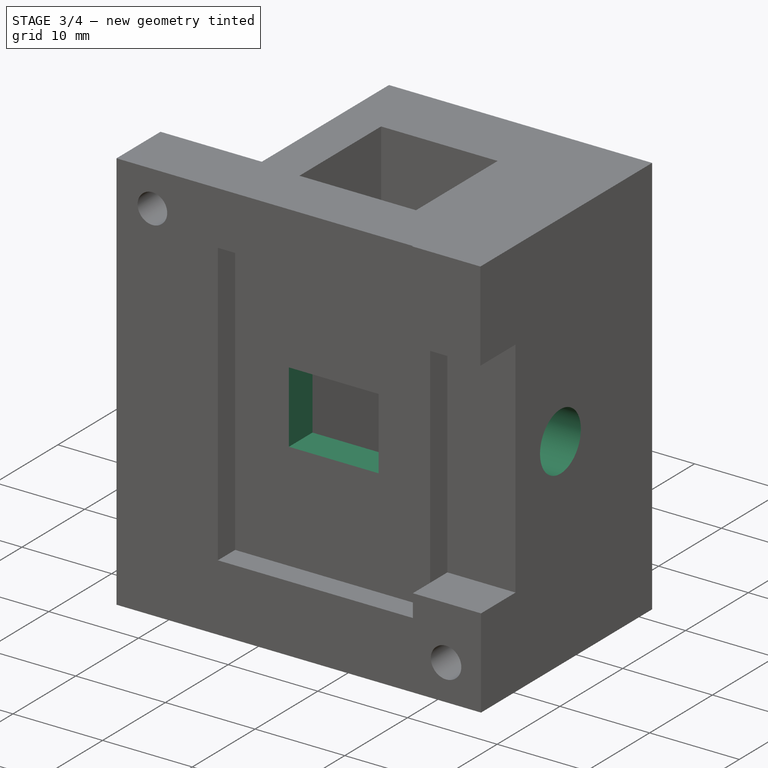
[diagram: stage 3 of 4 — iso view after this stage's code; geometry added in this stage tinted green]
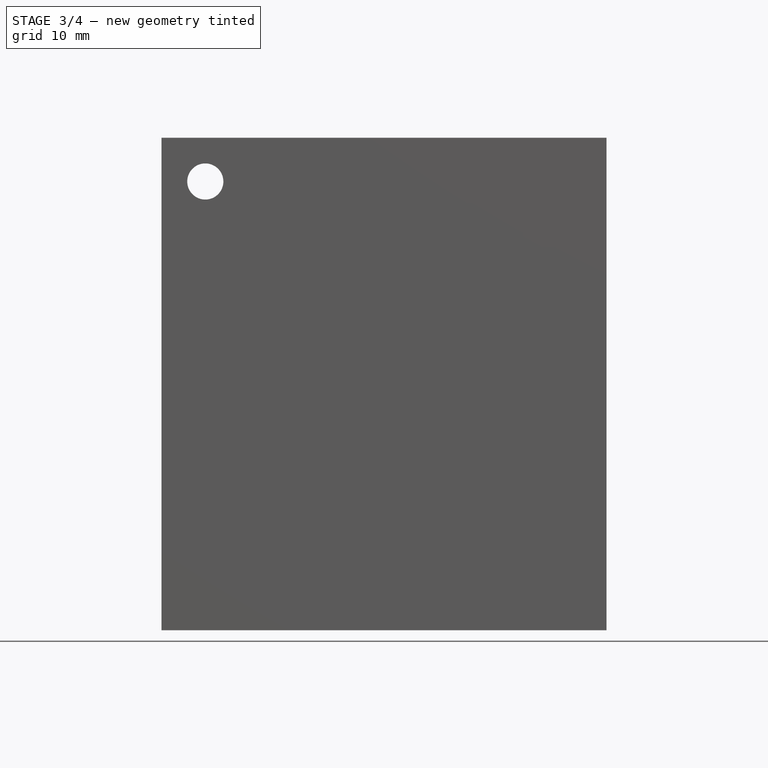
[diagram: stage 3 of 4 — front view after this stage's code; geometry added in this stage tinted green]
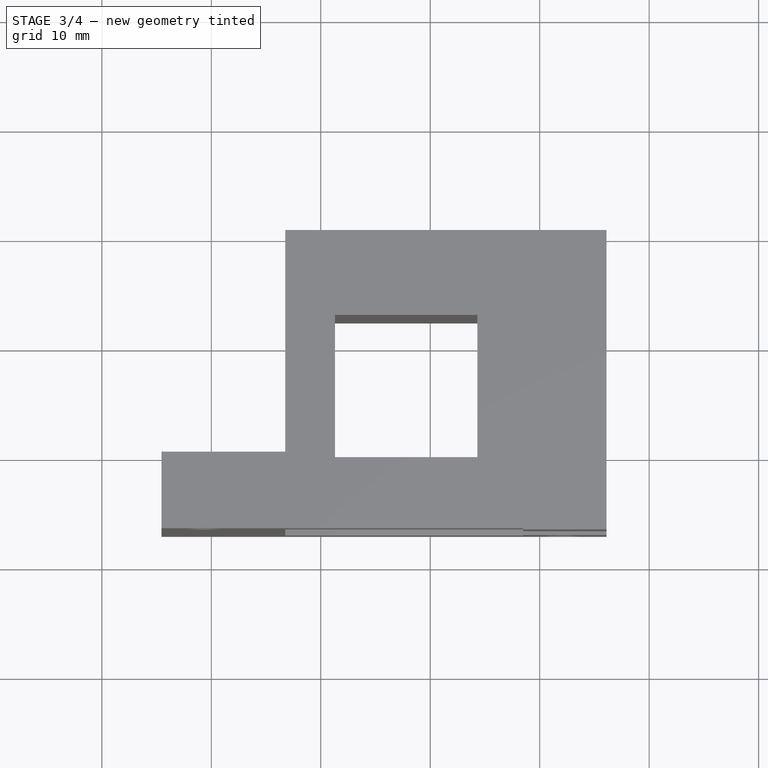
[diagram: stage 3 of 4 — top view after this stage's code; geometry added in this stage tinted green]
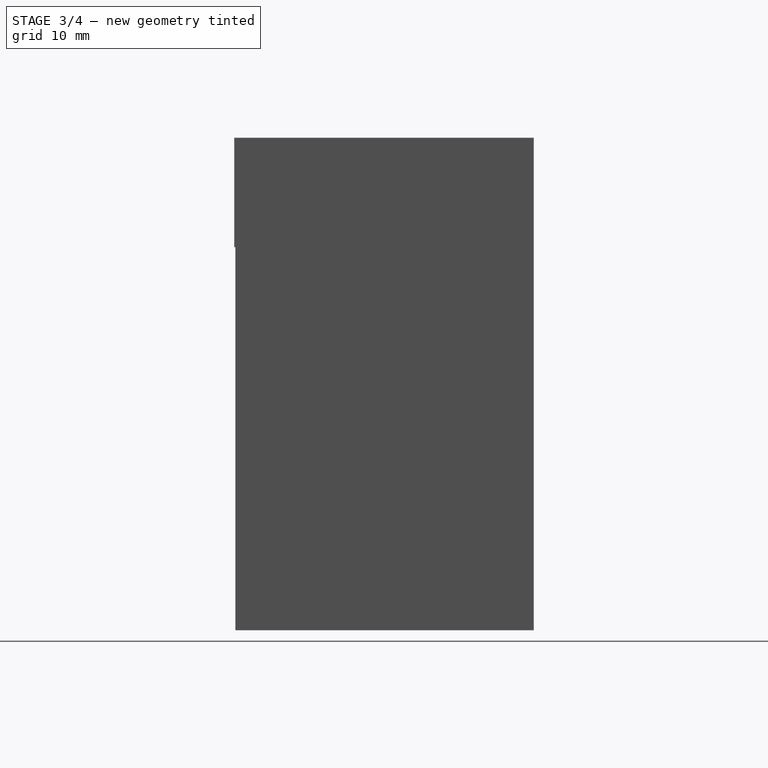
[diagram: stage 3 of 4 — right view after this stage's code; geometry added in this stage tinted green]
FEATURE [PartDesign::Fillet] Fillet
  Base = -> Pad006
  BaseFeature = -> Pad006
  Radius = 1
  SupportTransform = false
  UseAllEdges = false
FEATURE [PartDesign::ShapeBinder] ShapeBinder007
  Support = -> [Pad006]
  TraceSupport = false
FEATURE [Sketcher::SketchObject] Sketch009
  ExternalGeometry = -> [Pad006]
  FullyConstrained = true
  MapMode = 5
  Placement = pos=(0,-4.25,0) rot=(1,0,0;1.5708rad)
  Support = -> [ShapeBinder007]
  sketch-geometry (4):
    g0: LineSegment StartX=2.75 StartY=27.5 StartZ=0 EndX=12.75 EndY=27.5 EndZ=0
    g1: LineSegment StartX=12.75 StartY=27.5 StartZ=0 EndX=12.75 EndY=19.5 EndZ=0
    g2: LineSegment StartX=12.75 StartY=19.5 StartZ=0 EndX=2.75 EndY=19.5 EndZ=0
    g3: LineSegment StartX=2.75 StartY=19.5 StartZ=0 EndX=2.75 EndY=27.5 EndZ=0
  constraints (12):
    c: Coincident(g0,g1)
    c: Coincident(g1,g2)
    c: Coincident(g2,g3)
    c: Coincident(g3,g0)
    c: Horizontal(g0)
    c: Horizontal(g2)
    c: Vertical(g1)
    c: Vertical(g3)
    c: Distance(g0,g-3) = 11.5
    c: Distance(g0) = 10
    c: Distance(g0,g-4) = 5.75
    c: DistanceY(g1,g1) = 8
FEATURE [PartDesign::Pocket] Pocket002
  BaseFeature = -> Fillet
  Direction = (0,1,-2e-16)
  Length = 5
  Length2 = 5
  Profile = -> Sketch009
  ReferenceAxis = -> Sketch009 [N_Axis]
  Type = 0
FEATURE [PartDesign::ShapeBinder] ShapeBinder008
  Support = -> [Pocket002]
  TraceSupport = false
FEATURE [Sketcher::SketchObject] Sketch010
  ExternalGeometry = -> [Pocket002]
  FullyConstrained = true
  MapMode = 5
  Placement = pos=(26.1,0,0) rot=(0.57735,0.57735,0.57735;2.0944rad)
  Support = -> [ShapeBinder008]
  sketch-geometry (1):
    g0: Circle CenterX=5.65 CenterY=22.5 CenterZ=0 NormalX=0 NormalY=0 NormalZ=1 AngleXU=0 Radius=3.25
  constraints (3):
    c: Diameter(g0) = 6.5
    c: Distance(g0,g-3) = 14.6
    c: Distance(g0,g-4) = 22.5
FEATURE [PartDesign::Pocket] Pocket003
  BaseFeature = -> Pocket002
  Direction = (-1,0,0)
  Length = 15
  Length2 = 5
  Profile = -> Sketch010
  ReferenceAxis = -> Sketch010 [N_Axis]
  Type = 0
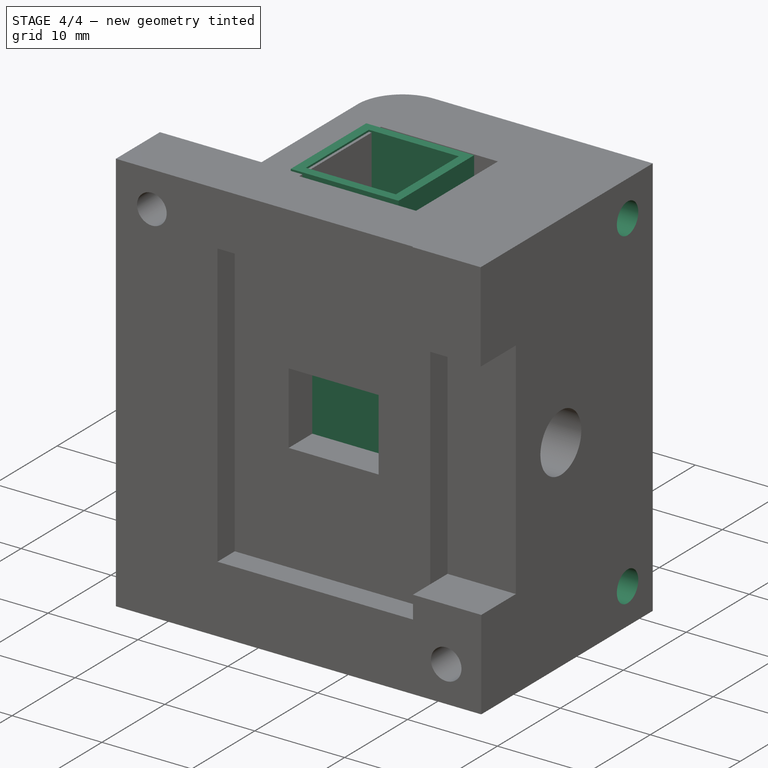
[diagram: stage 4 of 4 — iso view after this stage's code; geometry added in this stage tinted green]
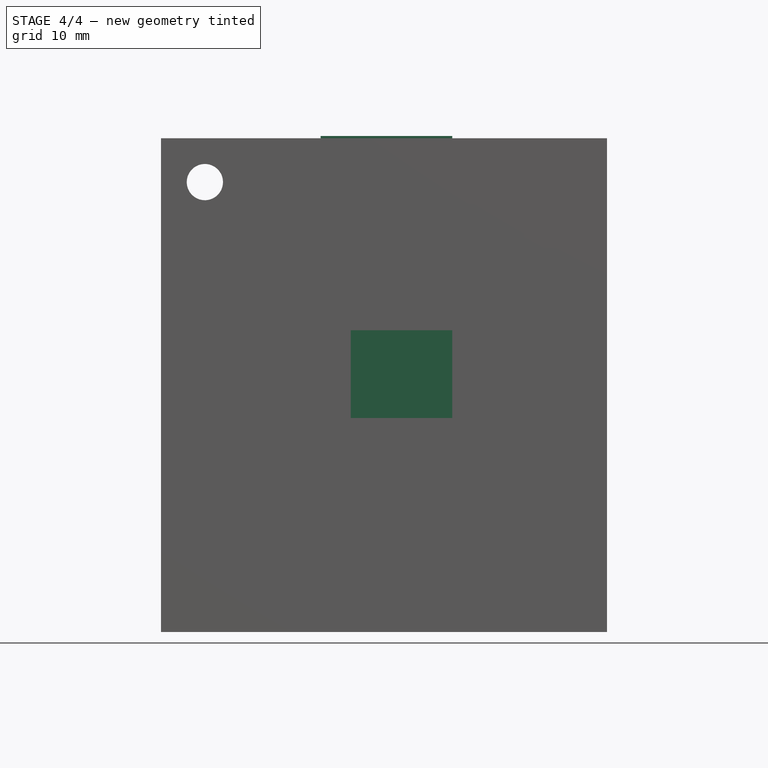
[diagram: stage 4 of 4 — front view after this stage's code; geometry added in this stage tinted green]
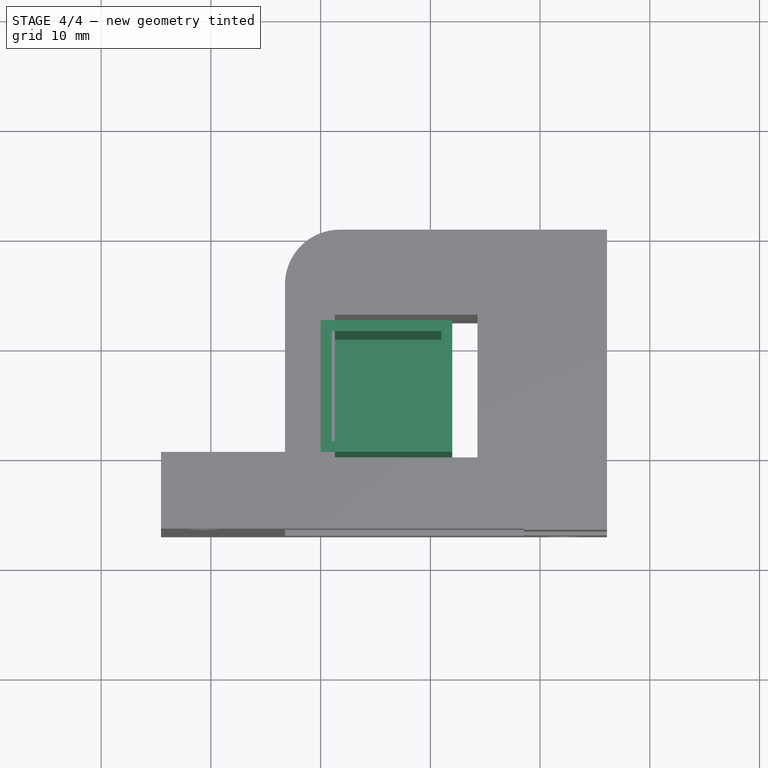
[diagram: stage 4 of 4 — top view after this stage's code; geometry added in this stage tinted green]
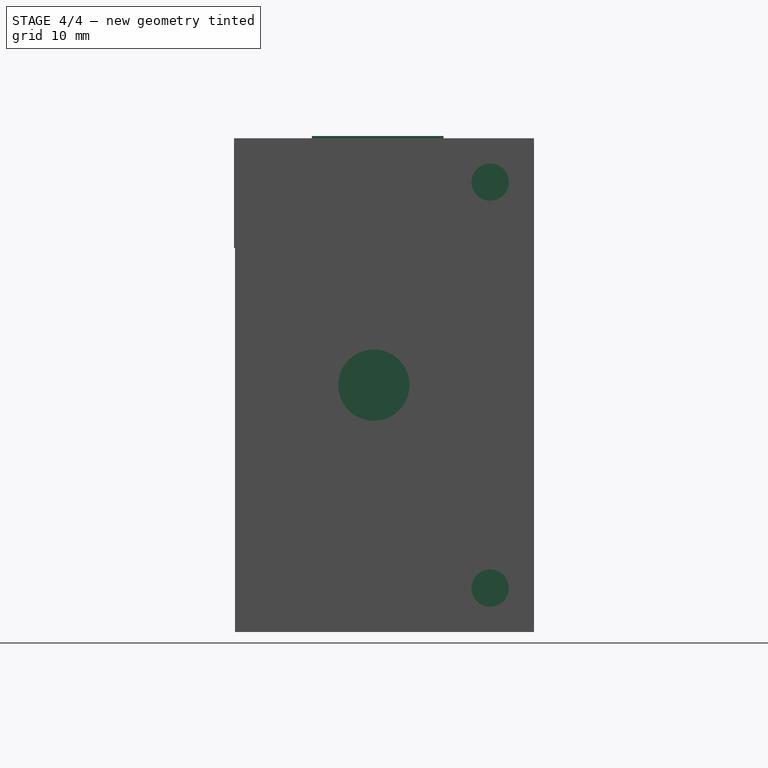
[diagram: stage 4 of 4 — right view after this stage's code; geometry added in this stage tinted green]
FEATURE [Sketcher::SketchObject] Sketch
  FullyConstrained = true
  MapMode = 5
  Support = -> [XY_Plane001]
  sketch-geometry (4):
    g0: LineSegment StartX=0 StartY=0 StartZ=0 EndX=12 EndY=0 EndZ=0
    g1: LineSegment StartX=12 StartY=0 StartZ=0 EndX=12 EndY=12 EndZ=0
    g2: LineSegment StartX=12 StartY=12 StartZ=0 EndX=0 EndY=12 EndZ=0
    g3: LineSegment StartX=0 StartY=12 StartZ=0 EndX=0 EndY=0 EndZ=0
  constraints (11):
    c: Coincident(g0,g1)
    c: Coincident(g1,g2)
    c: Coincident(g2,g3)
    c: Coincident(g3,g0)
    c: Horizontal(g0)
    c: Horizontal(g2)
    c: Vertical(g1)
    c: Vertical(g3)
    c: Coincident(g0,g-1)
    c: DistanceY(g1,g1) = 12
    c: DistanceX(g2,g2) = 12
FEATURE [PartDesign::Pad] Pad
  Direction = (0,0,1)
  Length = 0.2
  Length2 = 10
  Profile = -> Sketch
  ReferenceAxis = -> Sketch [N_Axis]
  Type = 0
FEATURE [PartDesign::ShapeBinder] ShapeBinder
  Placement = pos=(0,0,0.2) rot=(0,0,1;0rad)
  Support = -> [Pad]
  TraceSupport = false
FEATURE [Sketcher::SketchObject] Sketch001
  ExternalGeometry = -> [Pad]
  FullyConstrained = true
  MapMode = 5
  Placement = pos=(0,0,0.2) rot=(0,0,1;0rad)
  Support = -> [ShapeBinder]
  sketch-geometry (8):
    g0: LineSegment StartX=1 StartY=11 StartZ=0 EndX=11 EndY=11 EndZ=0
    g1: LineSegment StartX=11 StartY=11 StartZ=0 EndX=11 EndY=1 EndZ=0
    g2: LineSegment StartX=11 StartY=1 StartZ=0 EndX=1 EndY=1 EndZ=0
    g3: LineSegment StartX=1 StartY=1 StartZ=0 EndX=1 EndY=11 EndZ=0
    g4: LineSegment StartX=0 StartY=12 StartZ=0 EndX=12 EndY=12 EndZ=0
    g5: LineSegment StartX=12 StartY=12 StartZ=0 EndX=12 EndY=0 EndZ=0
    g6: LineSegment StartX=12 StartY=0 StartZ=0 EndX=0 EndY=0 EndZ=0
    g7: LineSegment StartX=0 StartY=0 StartZ=0 EndX=0 EndY=12 EndZ=0
  constraints (22):
    c: Coincident(g0,g1)
    c: Coincident(g1,g2)
    c: Coincident(g2,g3)
    c: Coincident(g3,g0)
    c: Horizontal(g0)
    c: Horizontal(g2)
    c: Vertical(g1)
    c: Vertical(g3)
    c: Distance(g1,g-6) = 1
    c: Distance(g2,g-4) = 1
    c: Distance(g2,g-5) = 1
    c: Distance(g0,g-3) = 1
    c: Coincident(g4,g5)
    c: Coincident(g5,g6)
    c: Coincident(g6,g7)
    c: Coincident(g7,g4)
    c: Horizontal(g4)
    c: Horizontal(g6)
    c: Vertical(g5)
    c: Vertical(g7)
    c: Coincident(g4,g-4)
    c: Coincident(g5,g-6)
FEATURE [PartDesign::Pad] Pad001
  BaseFeature = -> Pad
  Direction = (0,0,1)
  Length = 45
  Length2 = 10
  Profile = -> Sketch001
  ReferenceAxis = -> Sketch001 [N_Axis]
  Type = 0
FEATURE [PartDesign::ShapeBinder] ShapeBinder009
  Support = -> [Pocket003]
  TraceSupport = false
FEATURE [Sketcher::SketchObject] Sketch011
  ExternalGeometry = -> [Pocket003]
  FullyConstrained = true
  MapMode = 5
  Placement = pos=(26.1,0,0) rot=(0.57735,0.57735,0.57735;2.0944rad)
  Support = -> [ShapeBinder009]
  sketch-geometry (2):
    g0: Circle CenterX=16.25 CenterY=41 CenterZ=0 NormalX=0 NormalY=0 NormalZ=1 AngleXU=0 Radius=1.7
    g1: Circle CenterX=16.25 CenterY=4 CenterZ=0 NormalX=0 NormalY=0 NormalZ=1 AngleXU=0 Radius=1.7
  constraints (6):
    c: Distance(g0,g-4) = 4
    c: Distance(g0,g-3) = 4
    c: Distance(g1,g-3) = 4
    c: Distance(g1,g-1) = 4
    c: Diameter(g0) = 3.4
    c: Diameter(g1) = 3.4
FEATURE [PartDesign::Pocket] Pocket004
  BaseFeature = -> Pocket003
  Direction = (-1,0,0)
  Length = 20
  Length2 = 5
  Profile = -> Sketch011
  ReferenceAxis = -> Sketch011 [N_Axis]
  Type = 0
FEATURE [PartDesign::Fillet] Fillet001
  Base = -> Pocket004 [Edge47]
  BaseFeature = -> Pocket004
  Radius = 5
  SupportTransform = false
  UseAllEdges = false
FEATURE [PartDesign::Body] Body001  label="MainBody"
  Group = -> [Sketch002,Pad002,ShapeBinder001,Sketch003,Pocket,ShapeBinder002,Sketch004,Pocket001,ShapeBinder003,Sketch005,Pad003,ShapeBinder004,Sketch006,Pad004,ShapeBinder005,Sketch007,Pad005,ShapeBinder006,Sketch008,Pad006,Fillet,ShapeBinder007,Sketch009,Pocket002,ShapeBinder008,Sketch010,Pocket003,ShapeBinder009,Sketch011,Pocket004,Fillet001]
  Origin = -> Origin091
  Tip = -> Fillet001
FEATURE [App::Part] Part001  label="Holder"
  Group = -> [Body001]
  Origin = -> Origin090
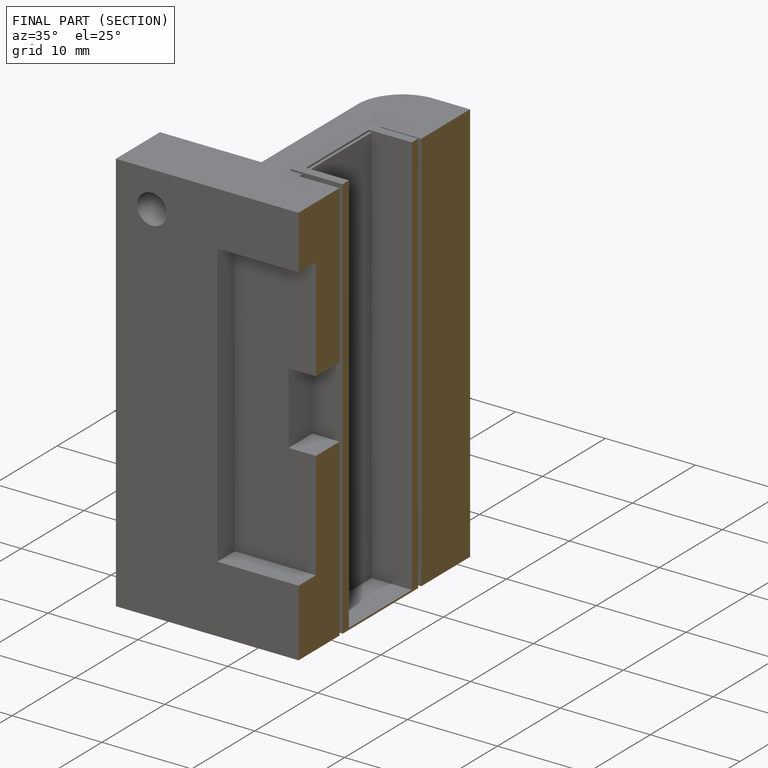
[diagram: finished part — half-section view (interior)]
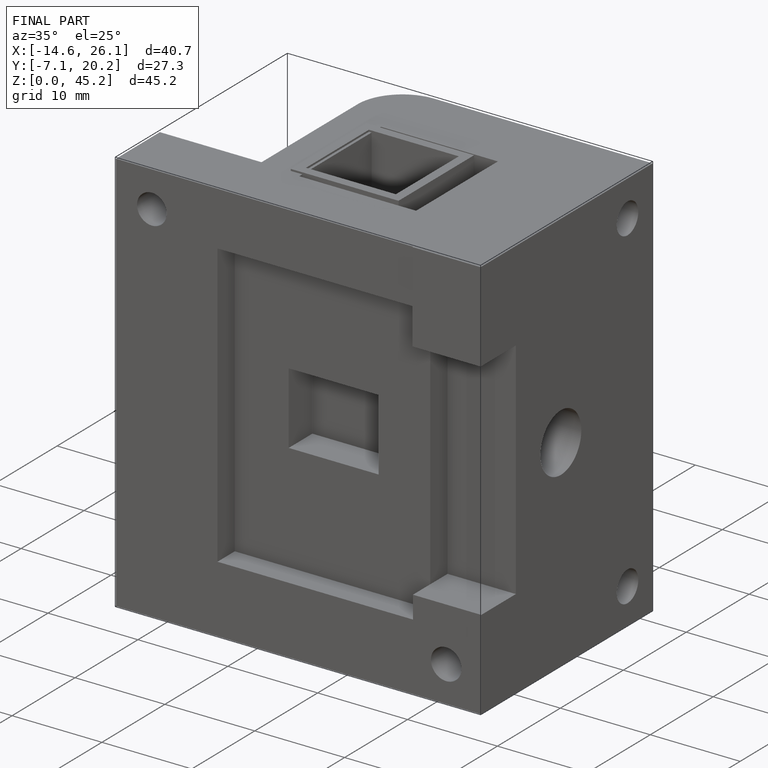
[diagram: finished part — iso view with bounding-box wireframe]
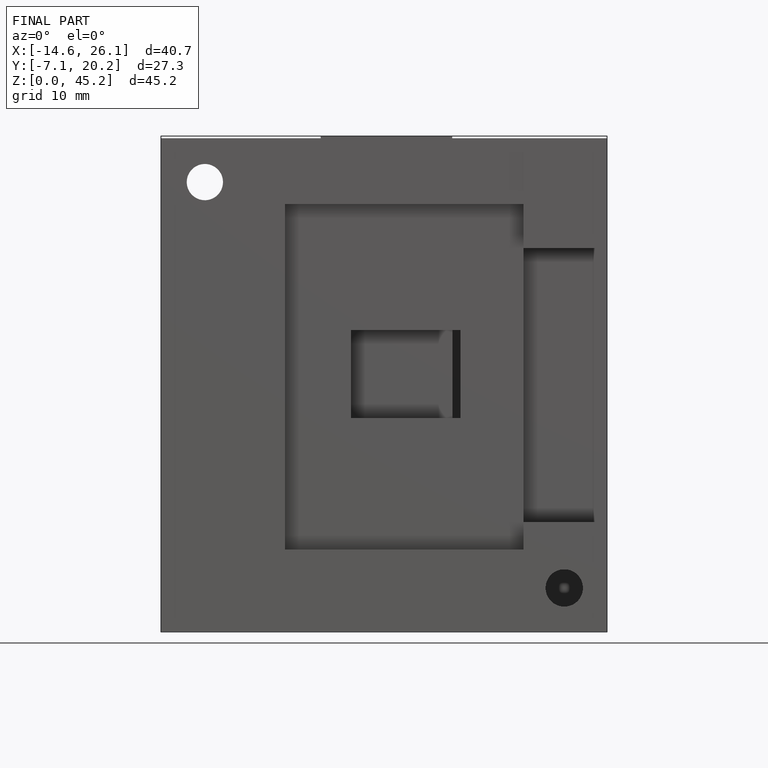
[diagram: finished part — front view with bounding-box wireframe]
